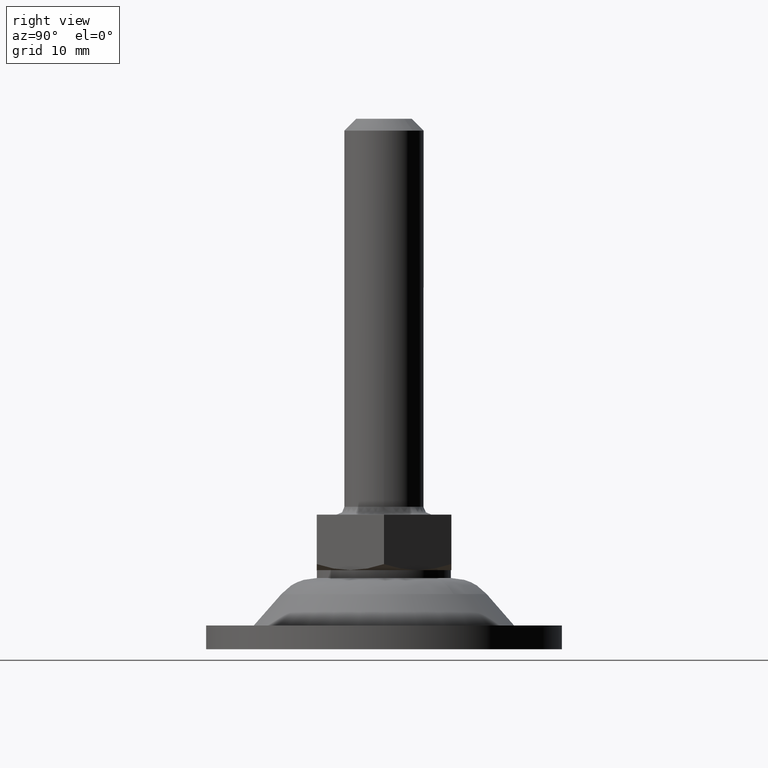
[diagram: clean part render]
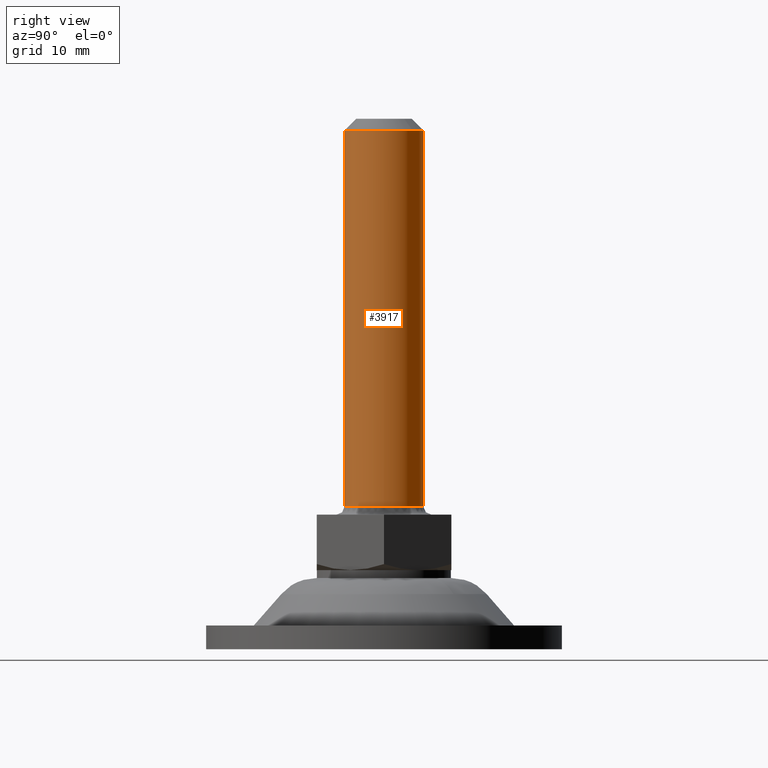
[diagram: same view with one face highlighted and labeled with its STEP entity id]
A machine part, right view. The second image highlights one B-rep face of the part: STEP entity #3917.
In plain terms, the highlighted face is a freeform B-spline surface patch.
Its self-contained STEP definition (entity closure, byte-faithful):
#3654=CARTESIAN_POINT('',(0.043632677761711,4.999809615355278,65.499999999963194));
#3655=VERTEX_POINT('',#3654);
#3661=CARTESIAN_POINT('',(-5.0,0.0,65.500000000000000));
#3662=VERTEX_POINT('',#3661);
#3663=CARTESIAN_POINT('',(-5.0,0.0,65.500000000000000));
#3664=CARTESIAN_POINT('',(-5.000000000000001,5.000000000000001,65.500000000000000));
#3665=CARTESIAN_POINT('',(0.0,5.0,65.500000000000000));
#3666=CARTESIAN_POINT('',(0.021816754373053,5.0,65.500000000000000));
#3667=CARTESIAN_POINT('',(0.043632677761711,4.999809615355278,65.499999999963194));
#3675=(BOUNDED_CURVE()B_SPLINE_CURVE(2,(#3663,#3664,#3665,#3666,#3667),.UNSPECIFIED.,.F.,.U.)B_SPLINE_CURVE_WITH_KNOTS((3,2,3),(0.500000000000000,0.750000000000000,0.751539894353978),.UNSPECIFIED.)CURVE()GEOMETRIC_REPRESENTATION_ITEM()RATIONAL_B_SPLINE_CURVE((1.0,0.707106781186548,1.0,0.998195901544123,0.996414028056455))REPRESENTATION_ITEM(''));
#3676=EDGE_CURVE('',#3662,#3655,#3675,.T.);
#3678=CARTESIAN_POINT('',(-3.267684943789444,-3.784472896999710,65.500000000000000));
#3679=VERTEX_POINT('',#3678);
#3680=CARTESIAN_POINT('',(-3.267684943789444,-3.784472896999711,65.500000000000000));
#3681=CARTESIAN_POINT('',(-5.0,-2.288713783078322,65.500000000000014));
#3682=CARTESIAN_POINT('',(-5.0,0.0,65.500000000000000));
#3690=(BOUNDED_CURVE()B_SPLINE_CURVE(2,(#3680,#3681,#3682),.UNSPECIFIED.,.F.,.U.)B_SPLINE_CURVE_WITH_KNOTS((3,3),(0.363957582033705,0.500000000000000),.UNSPECIFIED.)CURVE()GEOMETRIC_REPRESENTATION_ITEM()RATIONAL_B_SPLINE_CURVE((0.854696236450474,0.840616393226747,1.0))REPRESENTATION_ITEM(''));
#3691=EDGE_CURVE('',#3679,#3662,#3690,.T.);
#3693=CARTESIAN_POINT('',(-0.130884754294120,-4.998286624543791,65.500000000000000));
#3694=VERTEX_POINT('',#3693);
#3708=CARTESIAN_POINT('',(5.0,0.0,65.500000000000000));
#3709=VERTEX_POINT('',#3708);
#3710=CARTESIAN_POINT('',(5.0,0.0,65.500000000000000));
#3711=CARTESIAN_POINT('',(5.000000000000001,-5.000000000000001,65.500000000000000));
#3712=CARTESIAN_POINT('',(0.0,-5.0,65.500000000000000));
#3713=CARTESIAN_POINT('',(-0.065453598185488,-5.000000000000001,65.499999999999986));
#3714=CARTESIAN_POINT('',(-0.130884754294120,-4.998286624543791,65.500000000000000));
#3722=(BOUNDED_CURVE()B_SPLINE_CURVE(2,(#3710,#3711,#3712,#3713,#3714),.UNSPECIFIED.,.F.,.U.)B_SPLINE_CURVE_WITH_KNOTS((3,2,3),(0.0,0.250000000000000,0.254603307551659),.UNSPECIFIED.)CURVE()GEOMETRIC_REPRESENTATION_ITEM()RATIONAL_B_SPLINE_CURVE((1.0,0.707106781186548,1.0,0.994606889736026,0.989412388633692))REPRESENTATION_ITEM(''));
#3723=EDGE_CURVE('',#3709,#3694,#3722,.T.);
#3725=CARTESIAN_POINT('',(3.448196145457527,3.620765441434260,65.500000096056681));
#3726=VERTEX_POINT('',#3725);
#3727=CARTESIAN_POINT('',(3.448196145457527,3.620765441434260,65.500000096056695));
#3728=CARTESIAN_POINT('',(5.0,2.142922242407866,65.500000000000014));
#3729=CARTESIAN_POINT('',(5.0,0.0,65.500000000000000));
#3737=(BOUNDED_CURVE()B_SPLINE_CURVE(2,(#3727,#3728,#3729),.UNSPECIFIED.,.F.,.U.)B_SPLINE_CURVE_WITH_KNOTS((3,3),(0.871317023664649,1.0),.UNSPECIFIED.)CURVE()GEOMETRIC_REPRESENTATION_ITEM()RATIONAL_B_SPLINE_CURVE((0.853680523258541,0.849238515418575,1.0))REPRESENTATION_ITEM(''));
#3738=EDGE_CURVE('',#3726,#3709,#3737,.T.);
#3776=CARTESIAN_POINT('',(0.043632677761711,4.999809615355278,65.499999999963194));
#3777=CARTESIAN_POINT('',(2.018230570507202,4.982577560355699,65.500000000000014));
#3778=CARTESIAN_POINT('',(3.448196145457527,3.620765441434261,65.500000096056681));
#3786=(BOUNDED_CURVE()B_SPLINE_CURVE(2,(#3776,#3777,#3778),.UNSPECIFIED.,.F.,.U.)B_SPLINE_CURVE_WITH_KNOTS((3,3),(0.751539894353978,0.871317023664649),.UNSPECIFIED.)CURVE()GEOMETRIC_REPRESENTATION_ITEM()RATIONAL_B_SPLINE_CURVE((0.996414028056457,0.857815110152615,0.853680523258541))REPRESENTATION_ITEM(''));
#3787=EDGE_CURVE('',#3655,#3726,#3786,.T.);
#3793=CARTESIAN_POINT('',(-3.267686856523481,-3.784471245458693,66.687500000000455));
#3794=CARTESIAN_POINT('',(-5.060282995607246,-2.236661138625977,66.687500000000469));
#3795=CARTESIAN_POINT('',(-4.998286624877784,0.130884741539367,66.687500000000455));
#3796=CARTESIAN_POINT('',(-4.867401883338416,5.129171366417153,66.687500000000455));
#3797=CARTESIAN_POINT('',(0.130884741539367,4.998286624877784,66.687500000000455));
#3798=CARTESIAN_POINT('',(5.129171366417153,4.867401883338416,66.687500000000455));
#3799=CARTESIAN_POINT('',(4.998286624877784,-0.130884741539367,66.687500000000455));
#3800=CARTESIAN_POINT('',(4.867401883338416,-5.129171366417153,66.687500000000455));
#3801=CARTESIAN_POINT('',(-0.130884741539367,-4.998286624877784,66.687500000000455));
#3802=CARTESIAN_POINT('',(-3.267686856523481,-3.784471245458693,16.782812499982018));
#3803=CARTESIAN_POINT('',(-5.060282995607246,-2.236661138625977,16.782812499982022));
#3804=CARTESIAN_POINT('',(-4.998286624877784,0.130884741539367,16.782812499982018));
#3805=CARTESIAN_POINT('',(-4.867401883338416,5.129171366417153,16.782812499982018));
#3806=CARTESIAN_POINT('',(0.130884741539367,4.998286624877784,16.782812499982018));
#3807=CARTESIAN_POINT('',(5.129171366417153,4.867401883338416,16.782812499982018));
#3808=CARTESIAN_POINT('',(4.998286624877784,-0.130884741539367,16.782812499982018));
#3809=CARTESIAN_POINT('',(4.867401883338416,-5.129171366417153,16.782812499982018));
#3810=CARTESIAN_POINT('',(-0.130884741539367,-4.998286624877784,16.782812499982018));
#3818=(BOUNDED_SURFACE()B_SPLINE_SURFACE(2,1,((#3793,#3802),(#3794,#3803),(#3795,#3804),(#3796,#3805),(#3797,#3806),(#3798,#3807),(#3799,#3808),(#3800,#3809),(#3801,#3810)),.UNSPECIFIED.,.F.,.F.,.U.)B_SPLINE_SURFACE_WITH_KNOTS((3,2,2,2,3),(2,2),(0.0,4.639191898578663,12.923463146040559,21.207734393502459,29.492005640964361),(0.0,49.904687500018433),.UNSPECIFIED.)GEOMETRIC_REPRESENTATION_ITEM()RATIONAL_B_SPLINE_SURFACE(((0.855662221768731,0.855662221768731),(0.835979797464467,0.835979797464467),(1.0,1.0),(0.707106781186548,0.707106781186548),(1.0,1.0),(0.707106781186548,0.707106781186548),(1.0,1.0),(0.707106781186548,0.707106781186548),(1.0,1.0)))REPRESENTATION_ITEM('')SURFACE());
#3819=CARTESIAN_POINT('',(-5.0,0.0,18.0));
#3820=VERTEX_POINT('',#3819);
#3821=CARTESIAN_POINT('',(-3.267685531928779,-3.784472389173986,17.999999999999989));
#3822=VERTEX_POINT('',#3821);
#3823=CARTESIAN_POINT('',(-5.0,0.0,18.0));
#3824=CARTESIAN_POINT('',(-5.0,-2.288713313150919,18.000000000000007));
#3825=CARTESIAN_POINT('',(-3.267685531928779,-3.784472389173987,17.999999999999993));
#3833=(BOUNDED_CURVE()B_SPLINE_CURVE(2,(#3823,#3824,#3825),.UNSPECIFIED.,.F.,.U.)B_SPLINE_CURVE_WITH_KNOTS((3,3),(0.500000000000000,0.636042394485571),.UNSPECIFIED.)CURVE()GEOMETRIC_REPRESENTATION_ITEM()RATIONAL_B_SPLINE_CURVE((1.0,0.840616420736127,0.854696231590158))REPRESENTATION_ITEM(''));
#3834=EDGE_CURVE('',#3820,#3822,#3833,.T.);
#3835=ORIENTED_EDGE('',*,*,#3834,.T.);
#3836=CARTESIAN_POINT('',(-3.267684943789444,-3.784472896999710,65.500000000000000));
#3837=CARTESIAN_POINT('',(-3.267685531928779,-3.784472389173986,17.999999999999989));
#3838=QUASI_UNIFORM_CURVE('',1,(#3836,#3837),.UNSPECIFIED.,.F.,.U.);
#3839=EDGE_CURVE('',#3679,#3822,#3838,.T.);
#3840=ORIENTED_EDGE('',*,*,#3839,.F.);
#3841=ORIENTED_EDGE('',*,*,#3691,.T.);
#3842=ORIENTED_EDGE('',*,*,#3676,.T.);
#3843=ORIENTED_EDGE('',*,*,#3787,.T.);
#3844=ORIENTED_EDGE('',*,*,#3738,.T.);
#3845=ORIENTED_EDGE('',*,*,#3723,.T.);
#3846=CARTESIAN_POINT('',(-0.130880657047790,-4.998286731830621,18.0));
#3847=VERTEX_POINT('',#3846);
#3848=CARTESIAN_POINT('',(-0.130884754294120,-4.998286624543791,65.500000000000000));
#3849=CARTESIAN_POINT('',(-0.130880657047790,-4.998286731830621,18.0));
#3850=QUASI_UNIFORM_CURVE('',1,(#3848,#3849),.UNSPECIFIED.,.F.,.U.);
#3851=EDGE_CURVE('',#3694,#3847,#3850,.T.);
#3852=ORIENTED_EDGE('',*,*,#3851,.T.);
#3853=CARTESIAN_POINT('',(4.999605220400975,-0.062830248601393,17.999999999982482));
#3854=VERTEX_POINT('',#3853);
#3855=CARTESIAN_POINT('',(-0.130880657047790,-4.998286731830621,17.999999999999996));
#3856=CARTESIAN_POINT('',(-0.065451542128282,-5.0,17.999999999999996));
#3857=CARTESIAN_POINT('',(0.0,-5.0,18.0));
#3858=CARTESIAN_POINT('',(4.937559552380388,-4.999999999999999,18.0));
#3859=CARTESIAN_POINT('',(4.999605220400975,-0.062830248601393,17.999999999982482));
#3867=(BOUNDED_CURVE()B_SPLINE_CURVE(2,(#3855,#3856,#3857,#3858,#3859),.UNSPECIFIED.,.F.,.U.)B_SPLINE_CURVE_WITH_KNOTS((3,2,3),(0.745396836269637,0.750000000000000,0.997784292461472),.UNSPECIFIED.)CURVE()GEOMETRIC_REPRESENTATION_ITEM()RATIONAL_B_SPLINE_CURVE((0.989412713217838,0.994607058233155,1.0,0.709702644038183,0.994854287679845))REPRESENTATION_ITEM(''));
#3868=EDGE_CURVE('',#3847,#3854,#3867,.T.);
#3869=ORIENTED_EDGE('',*,*,#3868,.T.);
#3870=CARTESIAN_POINT('',(5.0,0.0,18.0));
#3871=VERTEX_POINT('',#3870);
#3872=CARTESIAN_POINT('',(4.999605220400975,-0.062830248601393,17.999999999982482));
#3873=CARTESIAN_POINT('',(5.0,-0.031416389149904,18.000000000000004));
#3874=CARTESIAN_POINT('',(5.0,0.0,18.0));
#3882=(BOUNDED_CURVE()B_SPLINE_CURVE(2,(#3872,#3873,#3874),.UNSPECIFIED.,.F.,.U.)B_SPLINE_CURVE_WITH_KNOTS((3,3),(0.997784292461473,1.0),.UNSPECIFIED.)CURVE()GEOMETRIC_REPRESENTATION_ITEM()RATIONAL_B_SPLINE_CURVE((0.994854287679847,0.997404137148366,1.0))REPRESENTATION_ITEM(''));
#3883=EDGE_CURVE('',#3854,#3871,#3882,.T.);
#3884=ORIENTED_EDGE('',*,*,#3883,.T.);
#3885=CARTESIAN_POINT('',(0.348666257954906,4.987828369196730,17.999999999988251));
#3886=VERTEX_POINT('',#3885);
#3887=CARTESIAN_POINT('',(5.0,0.0,18.0));
#3888=CARTESIAN_POINT('',(4.999999999999998,4.662684236187481,18.000000000000004));
#3889=CARTESIAN_POINT('',(0.348666257954906,4.987828369196730,17.999999999988248));
#3897=(BOUNDED_CURVE()B_SPLINE_CURVE(2,(#3887,#3888,#3889),.UNSPECIFIED.,.F.,.U.)B_SPLINE_CURVE_WITH_KNOTS((3,3),(0.0,0.237833686529777),.UNSPECIFIED.)CURVE()GEOMETRIC_REPRESENTATION_ITEM()RATIONAL_B_SPLINE_CURVE((1.0,0.721360504040096,0.972879876375734))REPRESENTATION_ITEM(''));
#3898=EDGE_CURVE('',#3871,#3886,#3897,.T.);
#3899=ORIENTED_EDGE('',*,*,#3898,.T.);
#3900=CARTESIAN_POINT('',(0.348666257954906,4.987828369196730,17.999999999988255));
#3901=CARTESIAN_POINT('',(0.174545579451538,5.000000000000001,17.999999999999996));
#3902=CARTESIAN_POINT('',(0.0,5.0,18.0));
#3903=CARTESIAN_POINT('',(-5.000000000000001,5.000000000000001,18.000000000000007));
#3904=CARTESIAN_POINT('',(-5.0,0.0,18.0));
#3912=(BOUNDED_CURVE()B_SPLINE_CURVE(2,(#3900,#3901,#3902,#3903,#3904),.UNSPECIFIED.,.F.,.U.)B_SPLINE_CURVE_WITH_KNOTS((3,2,3),(0.237833686529777,0.250000000000000,0.500000000000000),.UNSPECIFIED.)CURVE()GEOMETRIC_REPRESENTATION_ITEM()RATIONAL_B_SPLINE_CURVE((0.972879876375734,0.985746277146451,1.0,0.707106781186548,1.0))REPRESENTATION_ITEM(''));
#3913=EDGE_CURVE('',#3886,#3820,#3912,.T.);
#3914=ORIENTED_EDGE('',*,*,#3913,.T.);
#3915=EDGE_LOOP('',(#3835,#3840,#3841,#3842,#3843,#3844,#3845,#3852,#3869,#3884,#3899,#3914));
#3916=FACE_OUTER_BOUND('',#3915,.T.);
#3917=ADVANCED_FACE('',(#3916),#3818,.T.);